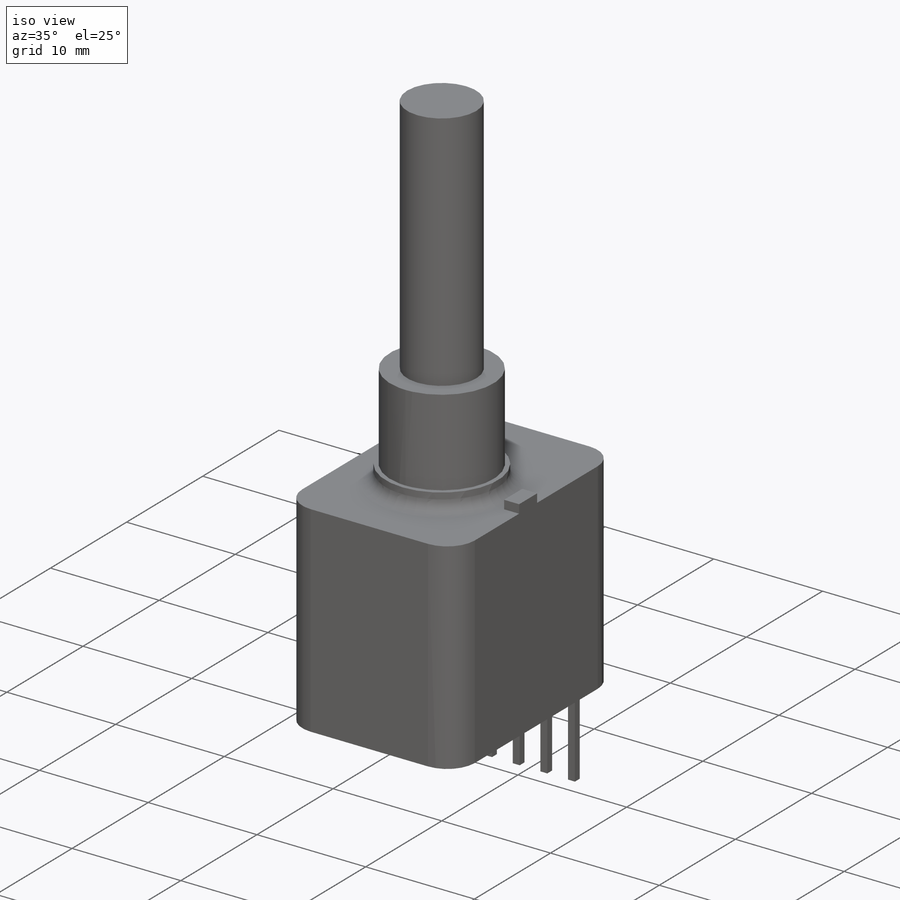
[diagram: iso view]
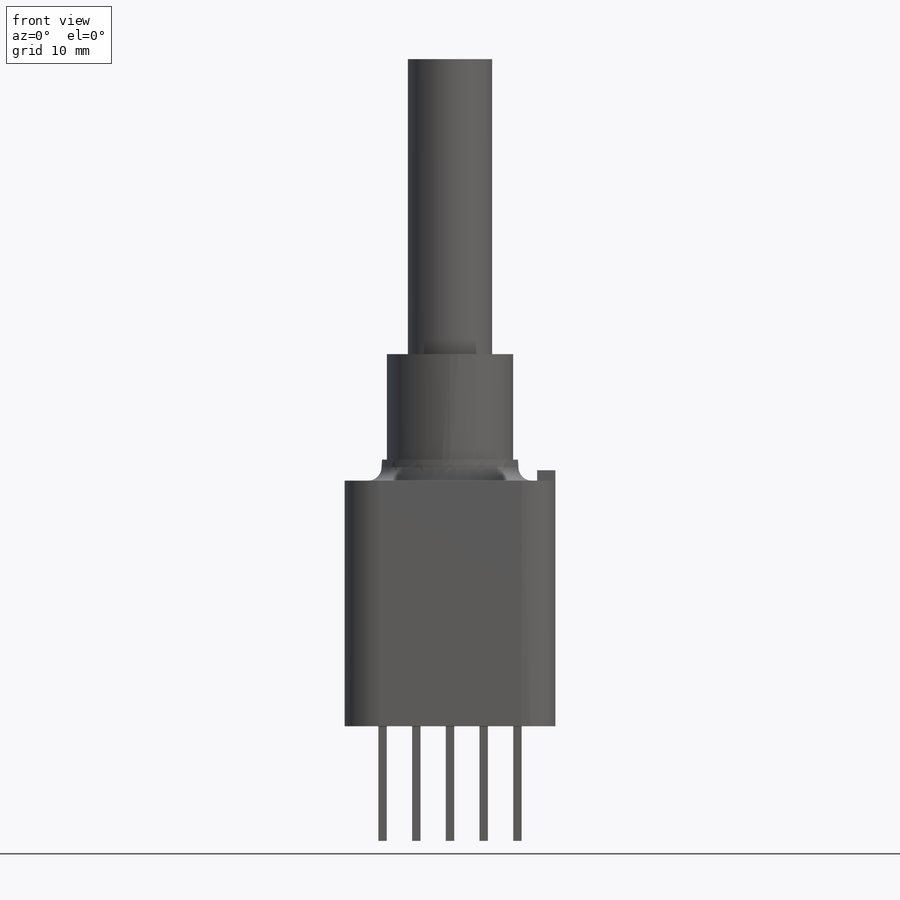
[diagram: front view]
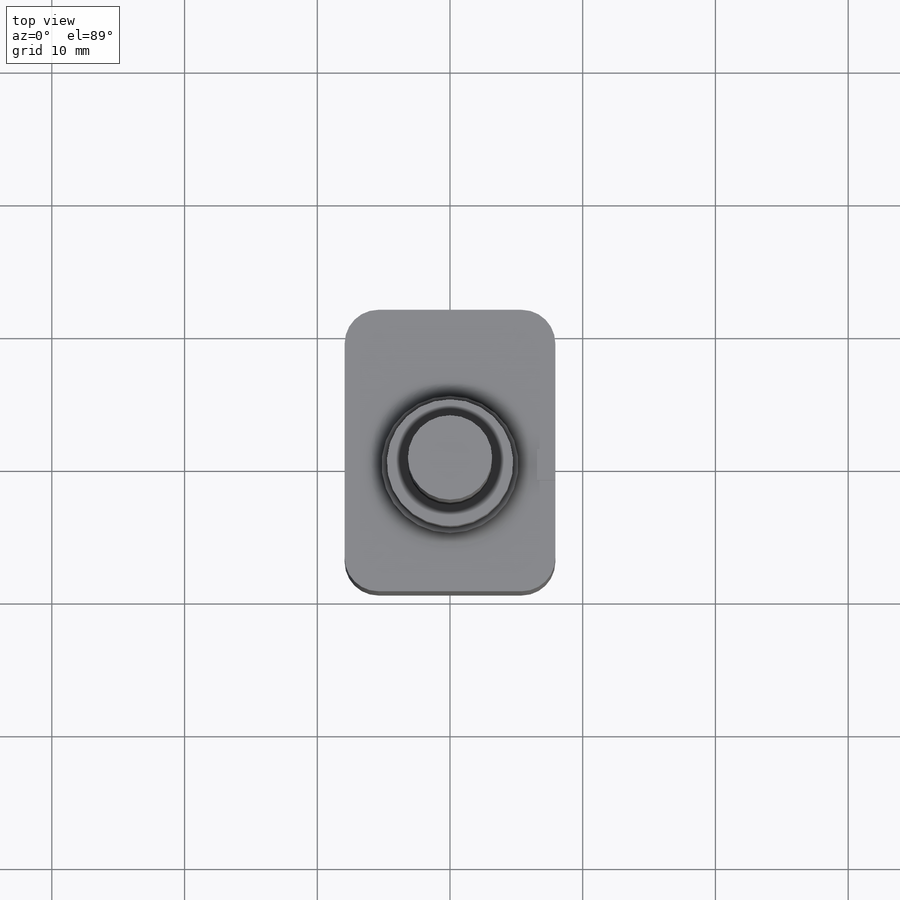
[diagram: top view]
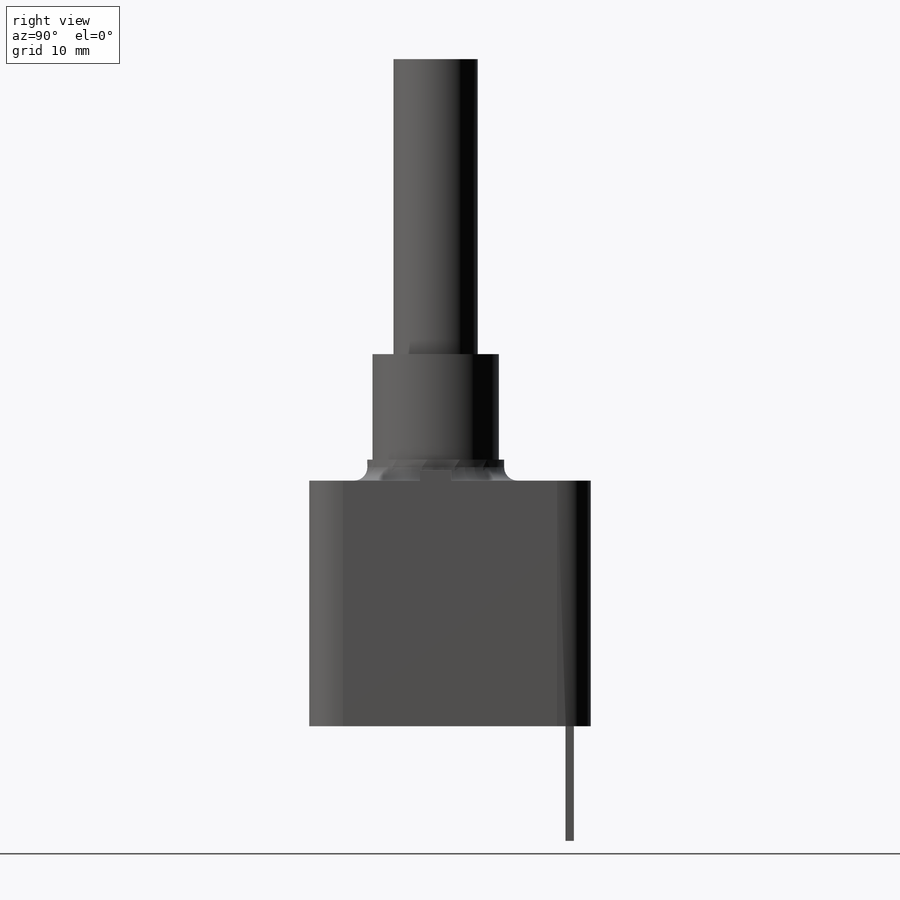
[diagram: right view]
SOLIDWORKS PART (.sldprt)
format: sldprt  version: not decoded by parser v0  size: 249,344 bytes
history: native  units: mm
features: sketch x6, extrude x6, fillet x2, material x1 (+13 scaffold rows collapsed)
feature tree (28):
  scaffold x13  (default folders/planes/origin — collapsed)
  material  "6061-T6 (SS)"
  sketch  "Sketch1"  dims[D1=21.21mm D2=15.875mm D3=9.525mm]
  extrude  "body"  Depth=18.5mm
  sketch  "Sketch2"  dims[D1=9.525mm]
  extrude  "3/8-32"  Depth=9.53mm
  sketch  "Sketch4"  dims[D1=6.35mm]
  extrude  "shaft"  Depth=22.225mm
  sketch  "Sketch5"  dims[D1=~10.31748mm]
  extrude  "boss"  Depth=1.5875mm
  sketch  "Sketch6"  dims[D1=2.36mm D2=1.3716mm D3=~8.010637mm]
  extrude  "anti-rotation lug"  Depth=0.7874mm
  sketch  "Sketch7"  dims[D2=2.54mm D3=0.635mm D4=1.5875mm D1=5.0]
  extrude  "pins"  Depth=8.636mm
  fillet  "Fillet1"  Radius=1.016mm
  fillet  "Fillet2"  Radius=2.54mm
decode coverage: 14 of 14 modeling features carry decoded parameters
note: ~ marks probable driven/reference dimensions
note: suppression state not decoded; provenance and decode notes live in map.json
